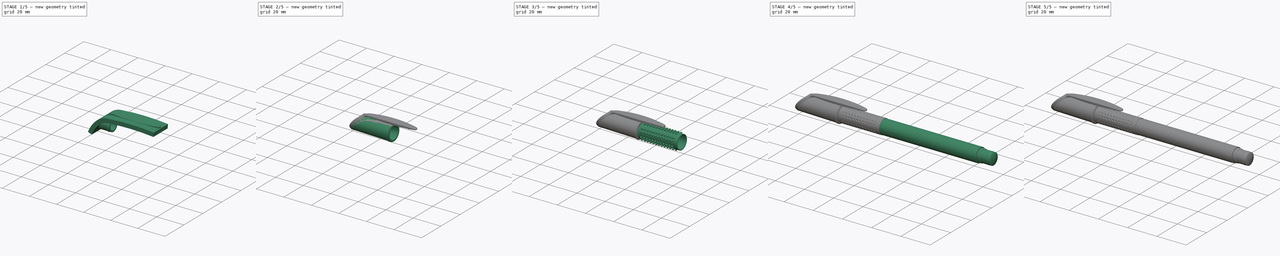
[diagram: build sequence overview — one tinted view per stage of 5, left to right]
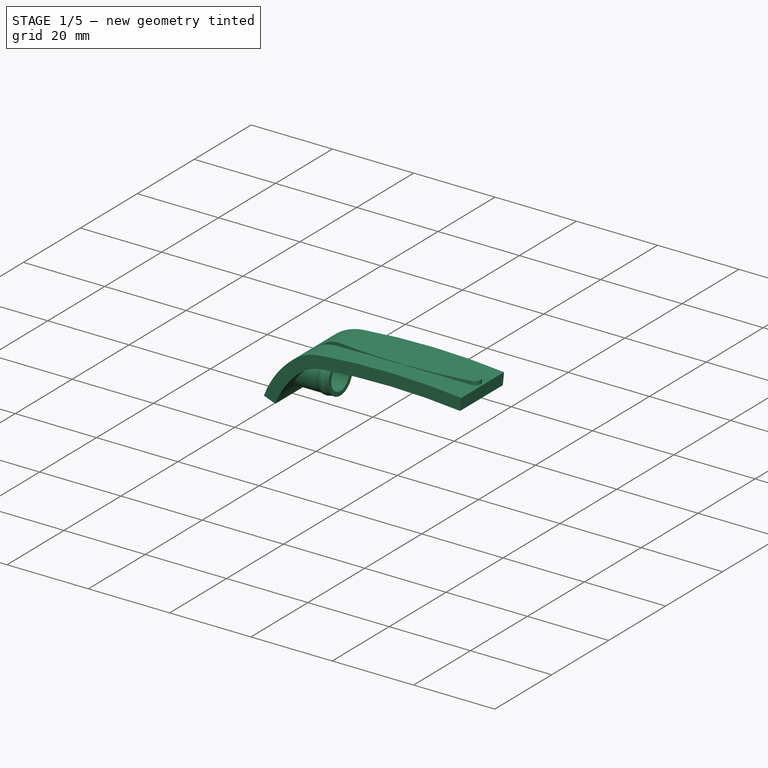
[diagram: stage 1 of 5 — iso view after this stage's code; geometry added in this stage tinted green]
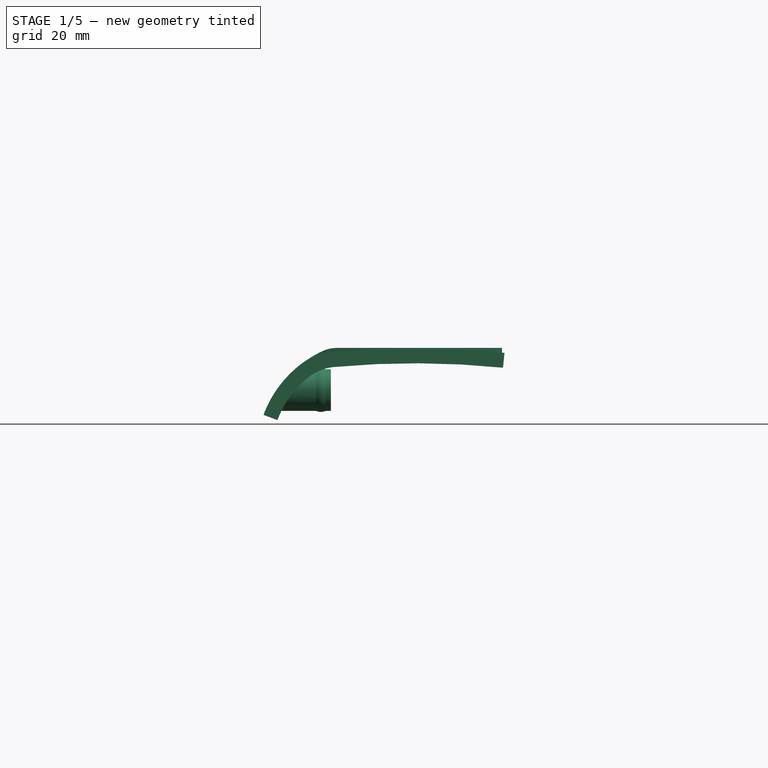
[diagram: stage 1 of 5 — front view after this stage's code; geometry added in this stage tinted green]
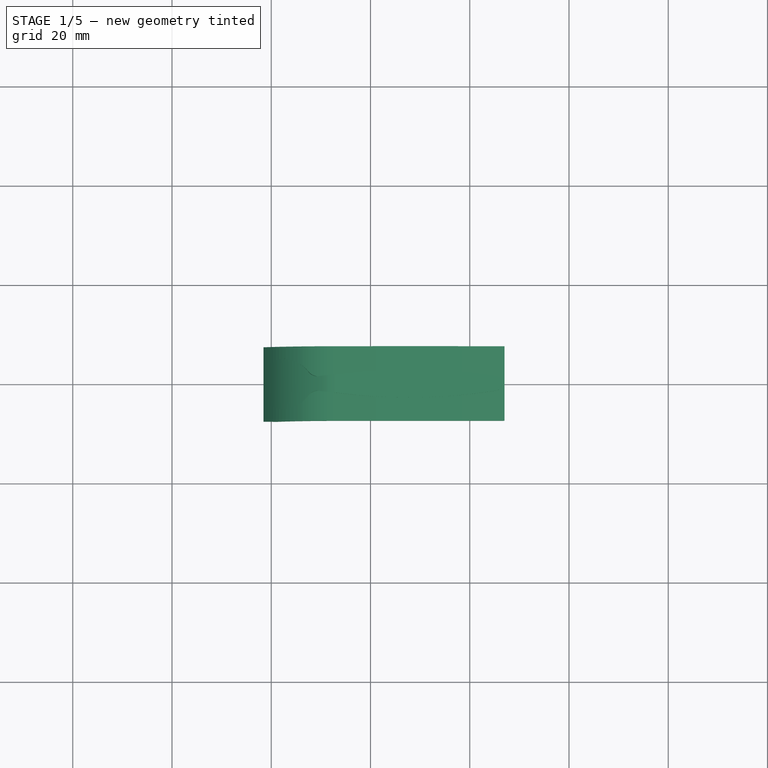
[diagram: stage 1 of 5 — top view after this stage's code; geometry added in this stage tinted green]
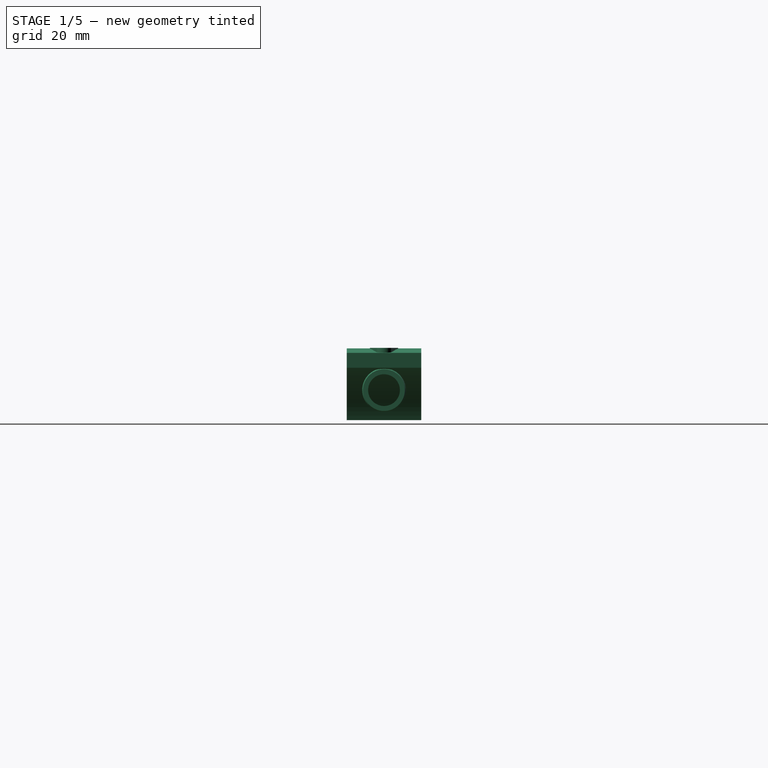
[diagram: stage 1 of 5 — right view after this stage's code; geometry added in this stage tinted green]
FCSTD DOCUMENT  (FreeCAD 0.19R)
Label: pen
License: All rights reserved
LicenseURL: http://en.wikipedia.org/wiki/All_rights_reserved
objects: Sketcher::SketchObject×18, PartDesign::Body×16, PartDesign::Revolution×8, PartDesign::Pad×6, Part::FeaturePython×3, App::DocumentObjectGroup×3, Part::Cut×3, Part::Sphere×2, Part::MultiFuse×2, Part::Fillet×2, Part::Sweep×2, Part::MultiCommon×2, Part::Offset×2
note: 80 computed .brp shape members not serialized (recipe doc carries the construction recipe); baked Part::Feature solids carry a one-line shape summary decoded from their .brp

FEATURE [PartDesign::Body] Body009  label="Body笔帽"
  Group = -> [Sketch009,Revolution006]
  Origin = -> Origin009
  Tip = -> Revolution006
FEATURE [Sketcher::SketchObject] Sketch010
  MapMode = 5
  Placement = pos=(0,0,0) rot=(1,0,0;1.5708rad)
  Support = -> [XZ_Plane010]
  sketch-geometry (4):
    g0: LineSegment StartX=-8.94427 StartY=6 StartZ=0 EndX=-28.9443 EndY=6 EndZ=0
    g1: LineSegment StartX=-28.9443 StartY=6 StartZ=0 EndX=-28.9443 EndY=-6 EndZ=0
    g2: LineSegment StartX=-28.9443 StartY=-6 StartZ=0 EndX=-19.799 EndY=-6 EndZ=0
    g3: ArcOfCircle CenterX=0 CenterY=-13 CenterZ=0 NormalX=0 NormalY=0 NormalZ=1 AngleXU=0 Radius=21 StartAngle=2.01077 EndAngle=2.80176
  constraints (12):
    c: Horizontal(g0)
    c: Coincident(g0,g1)
    c: Coincident(g1,g2)
    c: Horizontal(g2)
    c: Coincident(g3,g0)
    c: Coincident(g3,g2)
    c: DistanceX(g0,g0) = 20
    c: DistanceY(g1,g1) = 12
    c: DistanceY(g3,g-1) = 13
    c: Radius(g3) = 21
    c: Symmetric(g0,g1,g-1)
    c: PointOnObject(g3,g-2)
FEATURE [PartDesign::Pad] Pad003  label="Pad笔帽切"
  Length = 15
  Length2 = 100
  Midplane = true
  Placement = pos=(0,0,0) rot=(1,0,0;1.5708rad)
  Profile = -> Sketch010
  Refine = true
  Type = 0
FEATURE [Sketcher::SketchObject] Sketch011  label="Sketch笔帽夹内"
  MapMode = 5
  Placement = pos=(0,0,0) rot=(1,0,0;1.5708rad)
  Support = -> [XZ_Plane011]
  sketch-geometry (8):
    g0: LineSegment StartX=-20 StartY=4.2 StartZ=0 EndX=-11.0995 EndY=4.2 EndZ=0
    g1: LineSegment StartX=-8 StartY=4.2 StartZ=0 EndX=-8 EndY=3.2 EndZ=0
    g2: LineSegment StartX=-8 StartY=3.2 StartZ=0 EndX=-20 EndY=3.2 EndZ=0
    g3: LineSegment StartX=-20 StartY=3.2 StartZ=0 EndX=-20 EndY=4.2 EndZ=0
    g4: LineSegment StartX=-8.9005 StartY=4.2 StartZ=0 EndX=-8 EndY=4.2 EndZ=0
    g5: ArcOfCircle CenterX=-10 CenterY=2.40875 CenterZ=0 NormalX=0 NormalY=0 NormalZ=1 AngleXU=0 Radius=2 StartAngle=1.19555 EndAngle=1.94604
    g6: ArcOfCircle CenterX=-11.0995 CenterY=5.2 CenterZ=0 NormalX=0 NormalY=0 NormalZ=1 AngleXU=0 Radius=1 StartAngle=4.71239 EndAngle=5.08763
    g7: ArcOfCircle CenterX=-8.9005 CenterY=5.2 CenterZ=0 NormalX=0 NormalY=0 NormalZ=1 AngleXU=0 Radius=1 StartAngle=4.33714 EndAngle=4.71239
  constraints (22):
    c: Coincident(g4,g1)
    c: Coincident(g1,g2)
    c: Coincident(g2,g3)
    c: Coincident(g3,g0)
    c: Horizontal(g0)
    c: Horizontal(g2)
    c: Vertical(g1)
    c: Vertical(g3)
    c: DistanceY(g1,g1) = 1
    c: DistanceY(g-1,g4) = 4.2
    c: DistanceX(g0,g4) = 12
    c: DistanceX(g4,g-1) = 8
    c: Tangent(g0,g4)
    c: Tangent(g0,g6) = -1.5708
    c: Tangent(g5,g6) = 1.5708
    c: Tangent(g5,g7) = 1.5708
    c: Tangent(g4,g7) = -1.5708
    c: Radius(g5) = 2
    c: Angle(g5) = 0.750492
    c: Radius(g7) = 1
    c: Equal(g6,g7)
    c: DistanceX(g2,g5) = 10
FEATURE [PartDesign::Revolution] Revolution007  label="Revolution笔帽夹内"
  Angle = 360
  Axis = (1,0,0)
  Base = (0,0,0)
  Placement = pos=(0,0,0) rot=(1,0,0;1.5708rad)
  Profile = -> Sketch011
  ReferenceAxis = -> Sketch011 [H_Axis]
  Refine = true
FEATURE [PartDesign::Body] Body012  label="Body笔帽夹突"
  Group = -> [Sketch012,Pad004]
  Origin = -> Origin012
  Tip = -> Pad004
FEATURE [Sketcher::SketchObject] Sketch013  label="Sketch笔帽夹section_xz_path"
  MapMode = 5
  Placement = pos=(0,0,0) rot=(1,0,0;1.5708rad)
  Support = -> [XZ_Plane013]
  sketch-geometry (3):
    g0: ArcOfCircle CenterX=0 CenterY=-13 CenterZ=0 NormalX=0 NormalY=0 NormalZ=1 AngleXU=0 Radius=21 StartAngle=2.00727 EndAngle=2.79266
    g1: ArcOfCircle CenterX=-6.76387 CenterY=1.5 CenterZ=0 NormalX=0 NormalY=0 NormalZ=1 AngleXU=0 Radius=5 StartAngle=1.5708 EndAngle=2.00727
    g2: LineSegment StartX=-6.76387 StartY=6.5 StartZ=0 EndX=30 EndY=6.5 EndZ=0
  constraints (10):
    c: Horizontal(g2)
    c: Tangent(g1,g2) = 1.5708
    c: Tangent(g0,g1) = -1.5708
    c: Radius(g1) = 5
    c: Radius(g0) = 21
    c: Angle(g0) = 0.785398
    c: DistanceX(g-1,g2) = 30
    c: DistanceY(g-1,g2) = 6.5
    c: DistanceY(g0,g-1) = 13
    c: PointOnObject(g0,g-2)
FEATURE [Sketcher::SketchObject] Sketch014  label="Sketch笔帽夹section_xy"
  AttachmentOffset = pos=(0,0,-6) rot=(0,0,1;0rad)
  MapMode = 5
  Placement = pos=(0,0,-6) rot=(0,0,1;0rad)
  Support = -> [XY_Plane014]
  sketch-geometry (10):
    g0: ArcOfCircle CenterX=-12.5 CenterY=0 CenterZ=0 NormalX=0 NormalY=0 NormalZ=1 AngleXU=0 Radius=7 StartAngle=2.5141 EndAngle=3.76908
    g1: ArcOfCircle CenterX=-16.2237 CenterY=2.70073 CenterZ=0 NormalX=0 NormalY=0 NormalZ=1 AngleXU=0 Radius=2.4 StartAngle=1.4669 EndAngle=2.5141
    g2: ArcOfCircle CenterX=-16.6282 CenterY=-1.17824 CenterZ=0 NormalX=0 NormalY=0 NormalZ=1 AngleXU=0 Radius=6.3 StartAngle=0.594239 EndAngle=1.4669
    g3: ArcOfCircle CenterX=-9.751 CenterY=3.46875 CenterZ=0 NormalX=0 NormalY=0 NormalZ=1 AngleXU=0 Radius=2 StartAngle=3.73583 EndAngle=4.8703
    g4: ArcOfCircle CenterX=-16.2237 CenterY=-2.70073 CenterZ=0 NormalX=0 NormalY=0 NormalZ=1 AngleXU=0 Radius=2.4 StartAngle=3.76908 EndAngle=4.81628
    g5: ArcOfCircle CenterX=-16.6282 CenterY=1.17824 CenterZ=0 NormalX=0 NormalY=0 NormalZ=1 AngleXU=0 Radius=6.3 StartAngle=4.81628 EndAngle=5.68895
    g6: ArcOfCircle CenterX=-9.751 CenterY=-3.46875 CenterZ=0 NormalX=0 NormalY=0 NormalZ=1 AngleXU=0 Radius=2 StartAngle=1.41289 EndAngle=2.54735
    g7: ArcOfCircle CenterX=7.86116 CenterY=-107.138 CenterZ=0 NormalX=0 NormalY=0 NormalZ=1 AngleXU=0 Radius=110 StartAngle=1.41217 EndAngle=1.7287
    g8: ArcOfCircle CenterX=7.86116 CenterY=107.138 CenterZ=0 NormalX=0 NormalY=0 NormalZ=1 AngleXU=0 Radius=110 StartAngle=4.55448 EndAngle=4.87101
    g9: ArcOfCircle CenterX=25 CenterY=0 CenterZ=0 NormalX=0 NormalY=0 NormalZ=1 AngleXU=0 Radius=1.5 StartAngle=4.87101 EndAngle=7.69536
  constraints (30):
    c: Tangent(g1,g0) = -1.5708
    c: Tangent(g2,g1) = -1.5708
    c: Tangent(g4,g0) = -1.5708
    c: Tangent(g5,g4) = -1.5708
    c: Tangent(g2,g3) = 1.5708
    c: Tangent(g5,g6) = 1.5708
    c: Tangent(g3,g7) = 1.5708
    c: Tangent(g6,g8) = 1.5708
    c: Tangent(g7,g9) = -1.5708
    c: Tangent(g8,g9) = -1.5708
    c: Radius(g9) = 1.5
    c: Radius(g7) = 110
    c: DistanceX(g-1,g9) = 25
    c: Radius(g0) = 7
    c: PointOnObject(g0,g-1)
    c: Radius(g1) = 2.4
    c: Radius(g2) = 6.3
    c: Radius(g3) = 2
    c: Angle(g1) = 1.0472
    c: Angle(g2) = 0.872665
    c: Angle(g3) = 1.13446
    c: Angle(g4) = 1.0472
    c: Angle(g5) = 0.872665
    c: Angle(g6) = 1.13446
    c: DistanceX(g0,g-1) = 12.5
    c: Equal(g1,g4)
    c: Equal(g2,g5)
    c: Equal(g3,g6)
    c: Equal(g7,g8)
    c: PointOnObject(g9,g-1)
FEATURE [PartDesign::Pad] Pad006  label="Pad笔帽夹section_xy"
  Length = 20
  Length2 = 100
  Profile = -> Sketch014
  Refine = true
  Type = 0
FEATURE [PartDesign::Body] Body014  label="Body笔帽夹section_xy"
  Group = -> [Sketch014,Pad006]
  Origin = -> Origin014
  Tip = -> Pad006
FEATURE [Sketcher::SketchObject] Sketch015  label="Sketch笔帽夹section_xz_outline"
  AttachmentOffset = pos=(0,0,30) rot=(0,0,1;0rad)
  MapMode = 5
  Placement = pos=(30,-6.7e-15,6.7e-15) rot=(0.57735,0.57735,0.57735;2.0944rad)
  Support = -> [YZ_Plane013]
  sketch-geometry (1):
    g0: LineSegment StartX=-7.5 StartY=6.5 StartZ=0 EndX=7.5 EndY=6.5 EndZ=0
  constraints (3):
    c: Symmetric(g0,g0,g-2)
    c: DistanceX(g0,g0) = 15
    c: DistanceY(g-1,g0) = 6.5
FEATURE [PartDesign::Body] Body013  label="Body笔帽夹section_xz"
  Group = -> [Sketch013,Sketch015]
  Origin = -> Origin013
FEATURE [Part::Sweep] Sweep  label="Sweep_Part_笔帽夹section_xz"
  Frenet = false
  Sections = -> [Sketch015]
  Solid = false
  Spine = -> Sketch013 [Edge1,Edge2,Edge3]
  Transition = 1
FEATURE [Part::MultiCommon] Common  label="Common笔帽夹section0"
  Refine = true
  Shapes = -> [Pad006,Sweep]
FEATURE [Part::Offset] Offset  label="Offset笔帽夹section0"
  Fill = true
  Intersection = false
  Join = 0
  Mode = 0
  SelfIntersection = false
  Source = -> Common
  Value = 2
FEATURE [Sketcher::SketchObject] Sketch016  label="Sketch笔帽夹section_xz1_path"
  MapMode = 5
  Placement = pos=(0,0,0) rot=(1,0,0;1.5708rad)
  Support = -> [XZ_Plane015]
  sketch-geometry (3):
    g0: ArcOfCircle CenterX=0 CenterY=-13 CenterZ=0 NormalX=0 NormalY=0 NormalZ=1 AngleXU=0 Radius=23 StartAngle=2.26274 EndAngle=2.78634
    g1: ArcOfCircle CenterX=-6.38037 CenterY=-5.29994 CenterZ=0 NormalX=0 NormalY=0 NormalZ=1 AngleXU=0 Radius=13 StartAngle=1.66279 EndAngle=2.26274
    g2: ArcOfCircle CenterX=8.96085 CenterY=-171.594 CenterZ=0 NormalX=0 NormalY=0 NormalZ=1 AngleXU=0 Radius=180 StartAngle=1.47041 EndAngle=1.66279
  constraints (11):
    c: Tangent(g0,g1) = -1.5708
    c: Tangent(g1,g2) = -1.5708
    c: Radius(g0) = 23
    c: PointOnObject(g0,g-2)
    c: Radius(g1) = 13
    c: Radius(g2) = 180
    c: DistanceX(g-1,g2) = 27
    c: Angle(g0) = 0.523599
    c: DistanceY(g0,g-1) = 5
    c: DistanceY(g-1,g2) = 7.5
    c: DistanceY(g0,g-1) = 13
FEATURE [Sketcher::SketchObject] Sketch017  label="Sketch笔帽夹section_xz1_outline"
  AttachmentOffset = pos=(0,0,27) rot=(0,0,1;0rad)
  MapMode = 5
  Placement = pos=(27,-6e-15,6e-15) rot=(0.57735,0.57735,0.57735;2.0944rad)
  Support = -> [YZ_Plane015]
  sketch-geometry (1):
    g0: LineSegment StartX=-7.5 StartY=7.5 StartZ=0 EndX=7.5 EndY=7.5 EndZ=0
  constraints (3):
    c: Symmetric(g0,g0,g-2)
    c: DistanceX(g0,g0) = 15
    c: DistanceY(g-1,g0) = 7.5
FEATURE [PartDesign::Body] Body015  label="Body笔帽夹section_xz1"
  Group = -> [Sketch016,Sketch017]
  Origin = -> Origin015
FEATURE [Part::Sweep] Sweep001  label="Sweep_Part_笔帽夹section_xz1"
  Frenet = false
  Sections = -> [Sketch017]
  Solid = false
  Spine = -> Sketch016 [Edge1,Edge2,Edge3]
  Transition = 1
FEATURE [Part::Offset] Offset001  label="Offset笔帽夹section_xz1"
  Fill = true
  Intersection = false
  Join = 0
  Mode = 0
  SelfIntersection = false
  Source = -> Sweep001
  Value = -3
FEATURE [Part::Cut] Cut002  label="Cut笔帽夹内"
  Base = -> Revolution007
  Refine = true
  Tool = -> Pad003
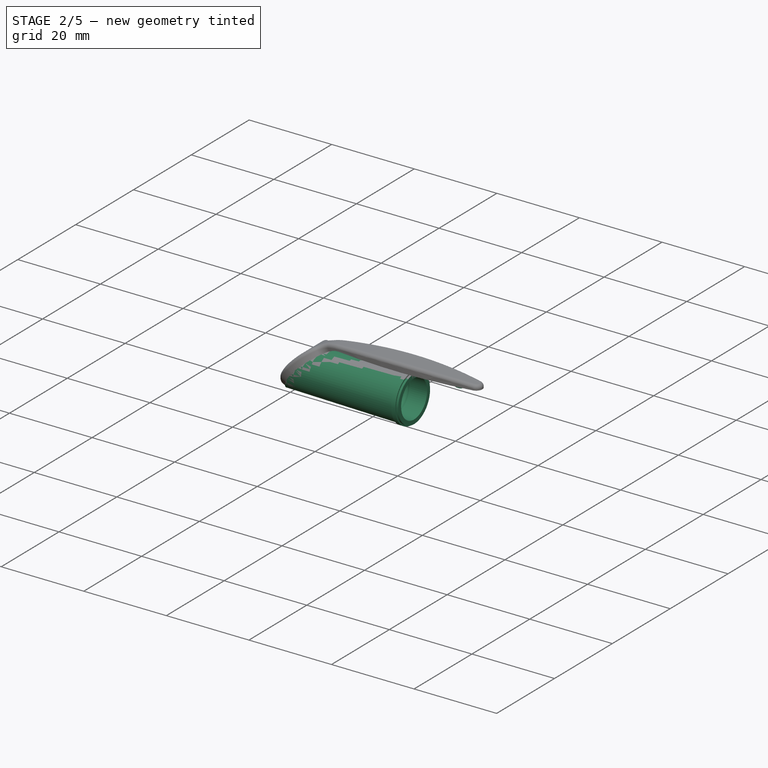
[diagram: stage 2 of 5 — iso view after this stage's code; geometry added in this stage tinted green]
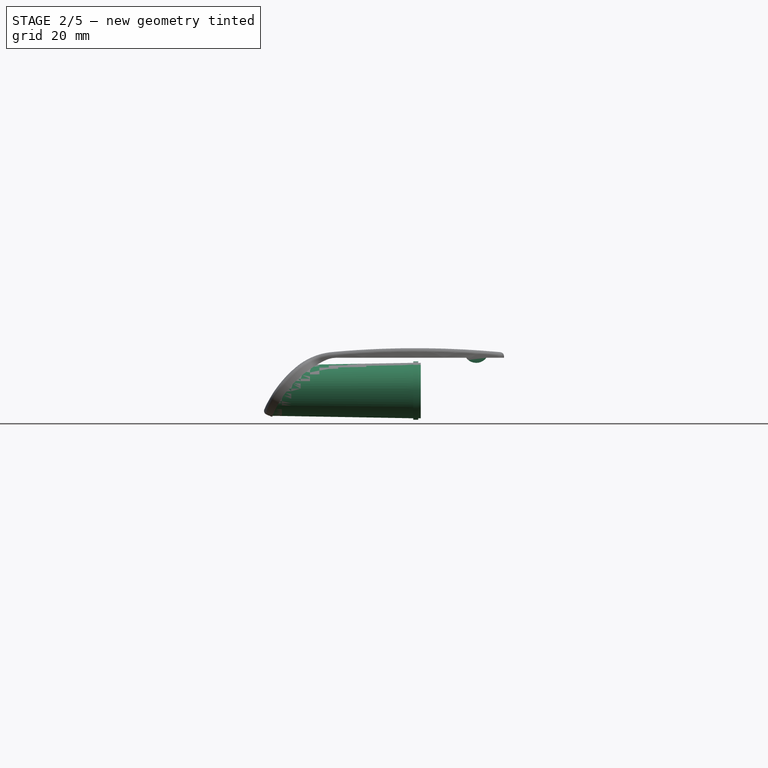
[diagram: stage 2 of 5 — front view after this stage's code; geometry added in this stage tinted green]
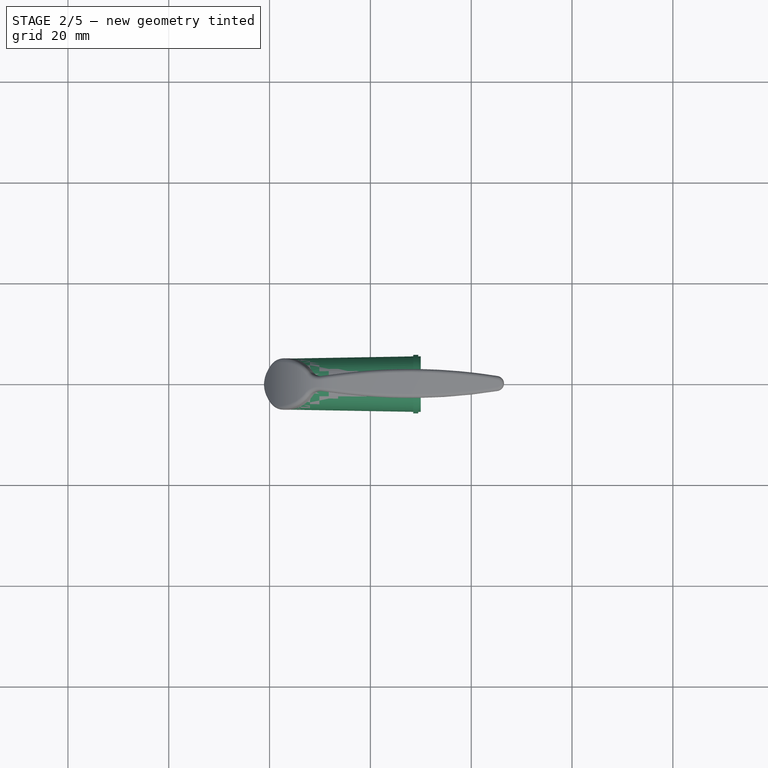
[diagram: stage 2 of 5 — top view after this stage's code; geometry added in this stage tinted green]
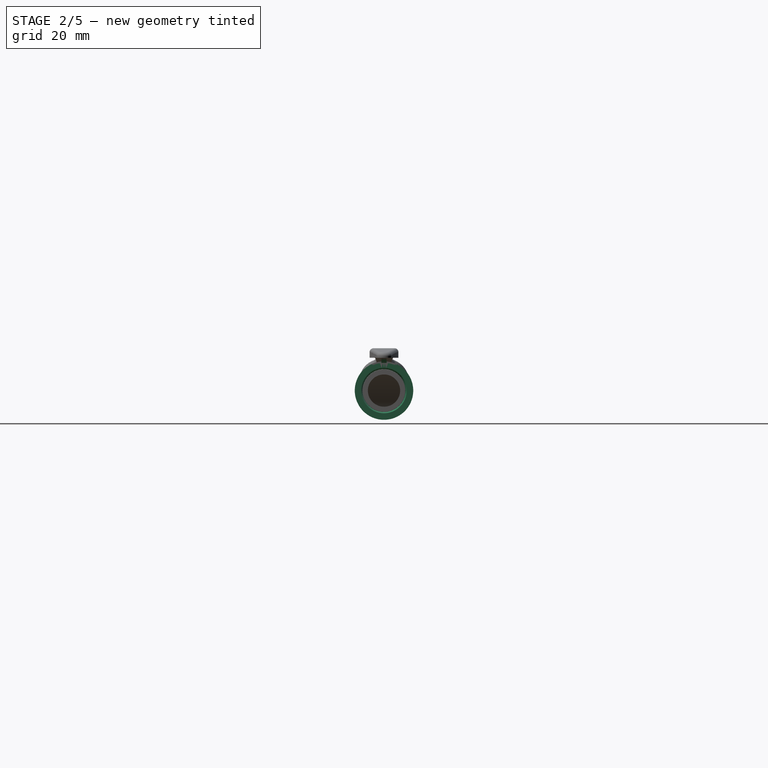
[diagram: stage 2 of 5 — right view after this stage's code; geometry added in this stage tinted green]
FEATURE [App::DocumentObjectGroup] Group001  label="Group笔管"
  Group = -> [Body005,Body006,Body007,Cut]
FEATURE [Sketcher::SketchObject] Sketch009
  MapMode = 5
  Placement = pos=(0,0,0) rot=(1,0,0;1.5708rad)
  Support = -> [XZ_Plane009]
  sketch-geometry (17):
    g0: LineSegment StartX=10 StartY=5.5 StartZ=0 EndX=10 EndY=4.5 EndZ=0
    g1: LineSegment StartX=10 StartY=4.5 StartZ=0 EndX=5.79708 EndY=4.42664 EndZ=0
    g2: LineSegment StartX=-5 StartY=4.23817 StartZ=0 EndX=-8.97394 EndY=4.23817 EndZ=0
    g3: LineSegment StartX=-20 StartY=4.23817 StartZ=0 EndX=-20 EndY=5.00253 EndZ=0
    g4: LineSegment StartX=-20 StartY=5.00253 StartZ=0 EndX=8.5 EndY=5.5 EndZ=0
    g5: LineSegment StartX=8.5 StartY=5.5 StartZ=0 EndX=8.5 EndY=5.8 EndZ=0
    g6: LineSegment StartX=8.5 StartY=5.8 StartZ=0 EndX=9.5 EndY=5.8 EndZ=0
    g7: LineSegment StartX=9.5 StartY=5.8 StartZ=0 EndX=9.5 EndY=5.5 EndZ=0
    g8: LineSegment StartX=9.5 StartY=5.5 StartZ=0 EndX=10 EndY=5.5 EndZ=0
    g9: LineSegment StartX=4.77117 StartY=4.40873 StartZ=0 EndX=-5 EndY=4.23817 EndZ=0
    g10: ArcOfCircle CenterX=5.3 CenterY=3.50828 CenterZ=0 NormalX=0 NormalY=0 NormalZ=1 AngleXU=0 Radius=1 StartAngle=1.23918 EndAngle=1.93732
    g11: ArcOfCircle CenterX=4.76245 CenterY=4.90865 CenterZ=0 NormalX=0 NormalY=0 NormalZ=1 AngleXU=0 Radius=0.5 StartAngle=4.72984 EndAngle=5.07891
    g12: ArcOfCircle CenterX=5.78835 CenterY=4.92656 CenterZ=0 NormalX=0 NormalY=0 NormalZ=1 AngleXU=0 Radius=0.5 StartAngle=4.38078 EndAngle=4.72984
    g13: LineSegment StartX=-11.0261 StartY=4.23817 StartZ=0 EndX=-20 EndY=4.23817 EndZ=0
    g14: ArcOfCircle CenterX=-10 CenterY=2.4191 CenterZ=0 NormalX=0 NormalY=0 NormalZ=1 AngleXU=0 Radius=2 StartAngle=1.22173 EndAngle=1.91986
    g15: ArcOfCircle CenterX=-11.0261 CenterY=5.23817 CenterZ=0 NormalX=0 NormalY=0 NormalZ=1 AngleXU=0 Radius=1 StartAngle=4.71239 EndAngle=5.06145
    g16: ArcOfCircle CenterX=-8.97394 CenterY=5.23817 CenterZ=0 NormalX=0 NormalY=0 NormalZ=1 AngleXU=0 Radius=1 StartAngle=4.36332 EndAngle=4.71239
  constraints (47):
    c: Vertical(g0)
    c: Coincident(g0,g1)
    c: Coincident(g9,g2)
    c: Horizontal(g2)
    c: Coincident(g13,g3)
    c: Coincident(g3,g4)
    c: Coincident(g4,g5)
    c: Vertical(g5)
    c: Coincident(g5,g6)
    c: Horizontal(g6)
    c: Coincident(g6,g7)
    c: Vertical(g7)
    c: Coincident(g7,g8)
    c: Coincident(g8,g0)
    c: Horizontal(g8)
    c: Angle(g5,g4) = 1.58825
    c: Parallel(g1,g4)
    c: DistanceY(g0,g0) = 1
    c: DistanceX(g8,g8) = 0.5
    c: DistanceX(g-1,g0) = 10
    c: DistanceX(g6,g6) = 1
    c: Equal(g5,g7)
    c: DistanceY(g5,g5) = 0.3
    c: DistanceX(g13,g2) = 15
    c: DistanceX(g13,g0) = 30
    c: Vertical(g3)
    c: DistanceY(g-1,g0) = 4.5
    c: Tangent(g1,g9)
    c: Tangent(g9,g11) = 1.5708
    c: Tangent(g10,g11) = 1.5708
    c: Tangent(g10,g12) = 1.5708
    c: Tangent(g1,g12) = 1.5708
    c: Radius(g10) = 1
    c: Radius(g12) = 0.5
    c: Equal(g11,g12)
    c: DistanceX(g10,g0) = 4.7
    c: Angle(g12) = 0.349066
    c: Tangent(g2,g13)
    c: Tangent(g13,g15) = 1.5708
    c: Tangent(g14,g15) = 1.5708
    c: Tangent(g14,g16) = 1.5708
    c: Tangent(g2,g16) = 1.5708
    c: Radius(g14) = 2
    c: Radius(g16) = 1
    c: Angle(g16) = 0.349066
    c: Equal(g15,g16)
    c: DistanceX(g3,g14) = 10
FEATURE [PartDesign::Revolution] Revolution006  label="Revolution笔帽"
  Angle = 360
  Axis = (1,0,0)
  Base = (0,0,0)
  Placement = pos=(0,0,0) rot=(1,0,0;1.5708rad)
  Profile = -> Sketch009
  ReferenceAxis = -> Sketch009 [H_Axis]
  Refine = true
FEATURE [PartDesign::Body] Body010  label="Body笔帽切"
  Group = -> [Sketch010,Pad003]
  Origin = -> Origin010
  Tip = -> Pad003
FEATURE [Part::Cut] Cut001  label="Cut笔帽"
  Base = -> Revolution006
  Refine = true
  Tool = -> Pad003
FEATURE [PartDesign::Body] Body011  label="Body笔帽夹内"
  Group = -> [Sketch011,Revolution007]
  Origin = -> Origin011
  Tip = -> Revolution007
FEATURE [Sketcher::SketchObject] Sketch012  label="Sketch笔帽夹突"
  MapMode = 5
  Placement = pos=(0,0,0) rot=(1,0,0;1.5708rad)
  Support = -> [XZ_Plane012]
  sketch-geometry (2):
    g0: LineSegment StartX=19 StartY=6.5 StartZ=0 EndX=23 EndY=6.5 EndZ=0
    g1: ArcOfCircle CenterX=21 CenterY=8 CenterZ=0 NormalX=0 NormalY=0 NormalZ=1 AngleXU=0 Radius=2.5 StartAngle=3.78509 EndAngle=5.63968
  constraints (7):
    c: Horizontal(g0)
    c: Coincident(g1,g0)
    c: Coincident(g1,g0)
    c: DistanceX(g-1,g0) = 23
    c: DistanceX(g0,g0) = 4
    c: DistanceY(g-1,g0) = 6.5
    c: Radius(g1) = 2.5
FEATURE [PartDesign::Pad] Pad004  label="Pad笔帽夹突"
  Length = 1
  Length2 = 100
  Midplane = true
  Placement = pos=(0,0,0) rot=(1,0,0;1.5708rad)
  Profile = -> Sketch012
  Refine = true
  Type = 0
FEATURE [Part::MultiCommon] Common001  label="Common笔帽夹section1"
  Refine = true
  Shapes = -> [Offset001,Offset]
FEATURE [Part::Fillet] Fillet001  label="Fillet笔帽夹section1"
  Base = -> Common001
  Edges = 19 edges r=0.8: [Edge2,Edge3,Edge4,Edge5,Edge6,Edge7,Edge8,Edge9,Edge10,Edge11,Edge13,Edge14,Edge15,Edge16,Edge33,Edge35,Edge36,Edge37,Edge38]
FEATURE [Part::MultiFuse] Fusion001  label="Fusion笔帽夹"
  Refine = true
  Shapes = -> [Cut002,Fillet001,Pad004]
FEATURE [App::DocumentObjectGroup] Group002  label="Group笔帽"
  Group = -> [Body009,Body010,Fillet,Body011,Body012,Body013,Body014,Body015,Fusion001]
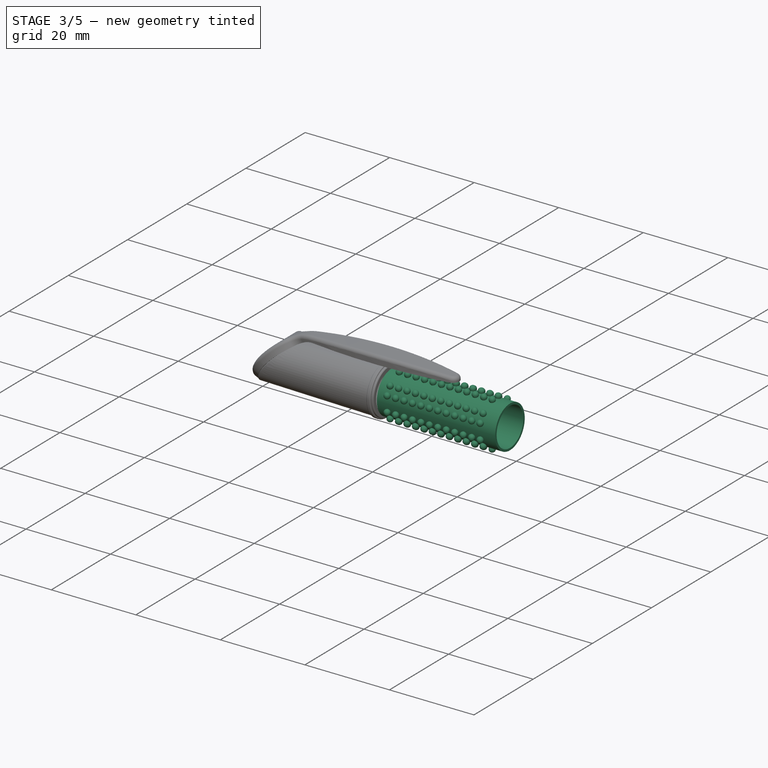
[diagram: stage 3 of 5 — iso view after this stage's code; geometry added in this stage tinted green]
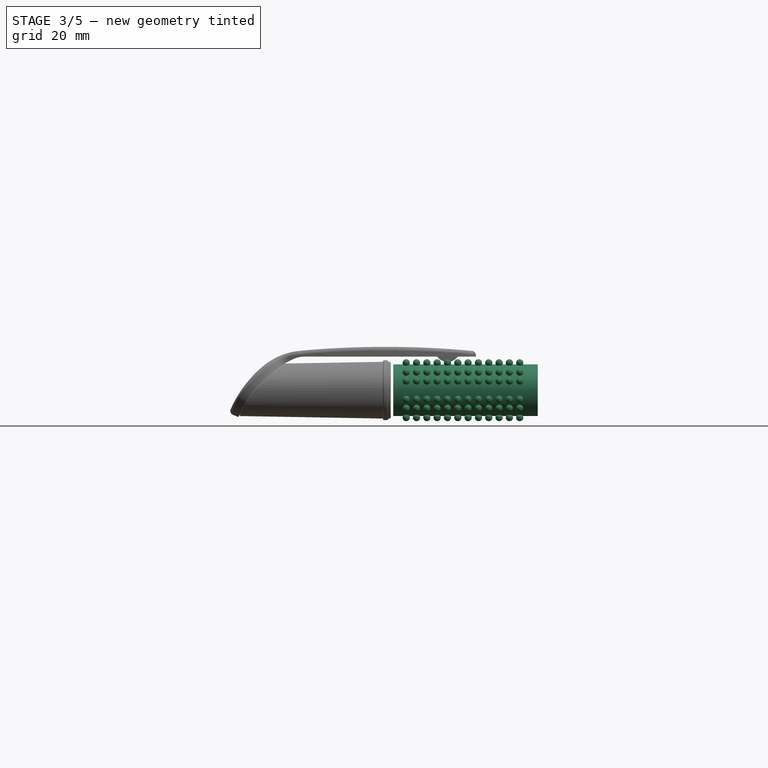
[diagram: stage 3 of 5 — front view after this stage's code; geometry added in this stage tinted green]
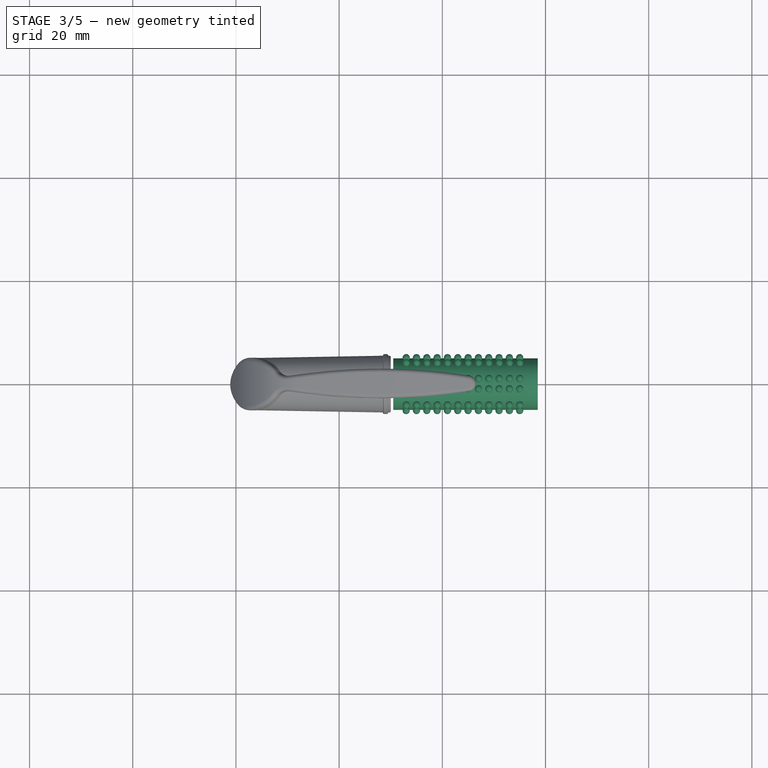
[diagram: stage 3 of 5 — top view after this stage's code; geometry added in this stage tinted green]
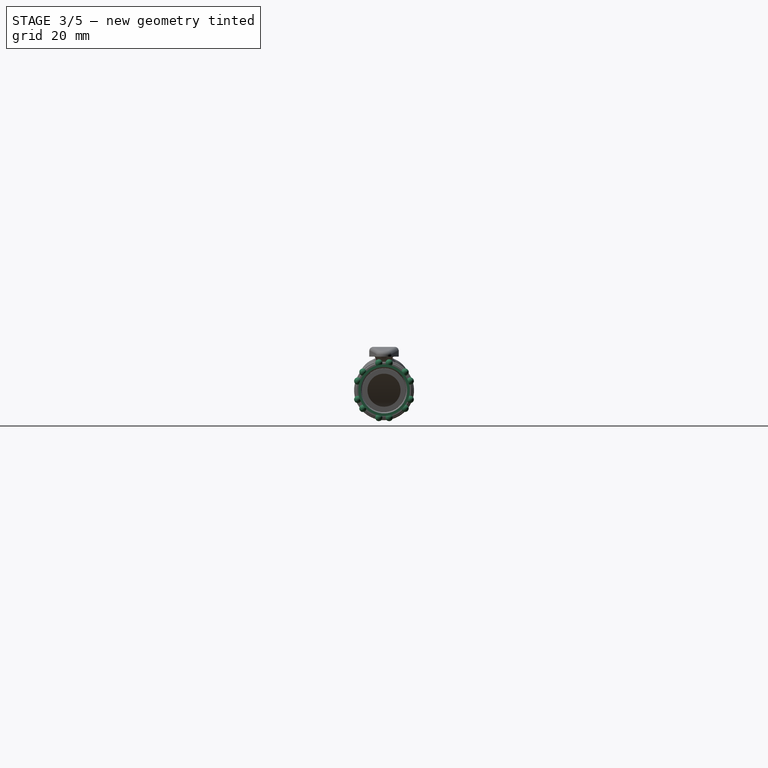
[diagram: stage 3 of 5 — right view after this stage's code; geometry added in this stage tinted green]
FEATURE [PartDesign::Body] Body007  label="Body笔管后盖"
  Group = -> [Sketch007,Revolution004]
  Origin = -> Origin007
  Tip = -> Revolution004
FEATURE [Sketcher::SketchObject] Sketch008
  MapMode = 5
  Placement = pos=(0,0,0) rot=(1,0,0;1.5708rad)
  Support = -> [XZ_Plane008]
  sketch-geometry (4):
    g0: LineSegment StartX=10.5 StartY=5 StartZ=0 EndX=38.5 EndY=5 EndZ=0
    g1: LineSegment StartX=38.5 StartY=5 StartZ=0 EndX=38.5 EndY=4.5 EndZ=0
    g2: LineSegment StartX=38.5 StartY=4.5 StartZ=0 EndX=10.5 EndY=4.5 EndZ=0
    g3: LineSegment StartX=10.5 StartY=4.5 StartZ=0 EndX=10.5 EndY=5 EndZ=0
  constraints (12):
    c: Coincident(g0,g1)
    c: Coincident(g1,g2)
    c: Coincident(g2,g3)
    c: Coincident(g3,g0)
    c: Horizontal(g0)
    c: Horizontal(g2)
    c: Vertical(g1)
    c: Vertical(g3)
    c: DistanceX(g0,g0) = 28
    c: DistanceY(g3,g3) = 0.5
    c: DistanceY(g-1,g2) = 4.5
    c: DistanceX(g-1,g2) = 10.5
FEATURE [PartDesign::Revolution] Revolution005  label="Revolution笔管套(光滑)"
  Angle = 360
  Axis = (1,0,0)
  Base = (0,0,0)
  Placement = pos=(0,0,0) rot=(1,0,0;1.5708rad)
  Profile = -> Sketch008
  ReferenceAxis = -> Sketch008 [H_Axis]
  Refine = true
FEATURE [PartDesign::Body] Body008  label="Body笔管套(光滑)"
  Group = -> [Sketch008,Revolution005]
  Origin = -> Origin008
  Tip = -> Revolution005
FEATURE [Part::Sphere] Sphere001  label="Sphere"
  Angle1 = -90
  Angle2 = 90
  Angle3 = 360
  AttacherType = Attacher::AttachEngine3D
  Placement = pos=(13,1,5.3) rot=(0,0,1;0rad)
  Radius = 0.7
FEATURE [Part::FeaturePython] Array001  label="Array圆球序列(两排)"  # Draft array (typed FeaturePython)
  Angle = 360
  ArrayType = 0
  Axis = (0,0,1)
  Base = -> Sphere001
  Center = (0,0,0)
  Fuse = false
  IntervalAxis = (0,0,0)
  IntervalX = (2,0,0)
  IntervalY = (0,-2,0)
  IntervalZ = (0,0,1)
  NumberPolar = 1
  NumberX = 12
  NumberY = 2
  NumberZ = 1
FEATURE [Part::FeaturePython] Array002  label="Array圆球序列(旋转)"  # Draft array (typed FeaturePython)
  Angle = 360
  ArrayType = 1
  Axis = (1,0,0)
  Base = -> Array001
  Center = (0,0,0)
  Fuse = false
  IntervalAxis = (0,0,0)
  IntervalX = (1,0,0)
  IntervalY = (0,1,0)
  IntervalZ = (0,0,1)
  NumberPolar = 6
  NumberX = 2
  NumberY = 2
  NumberZ = 1
FEATURE [Part::Fillet] Fillet  label="Fillet笔帽"
  Base = -> Cut001
  Edges = 5 edges r=0.25: [Edge2,Edge4,Edge11,Edge14,Edge21]
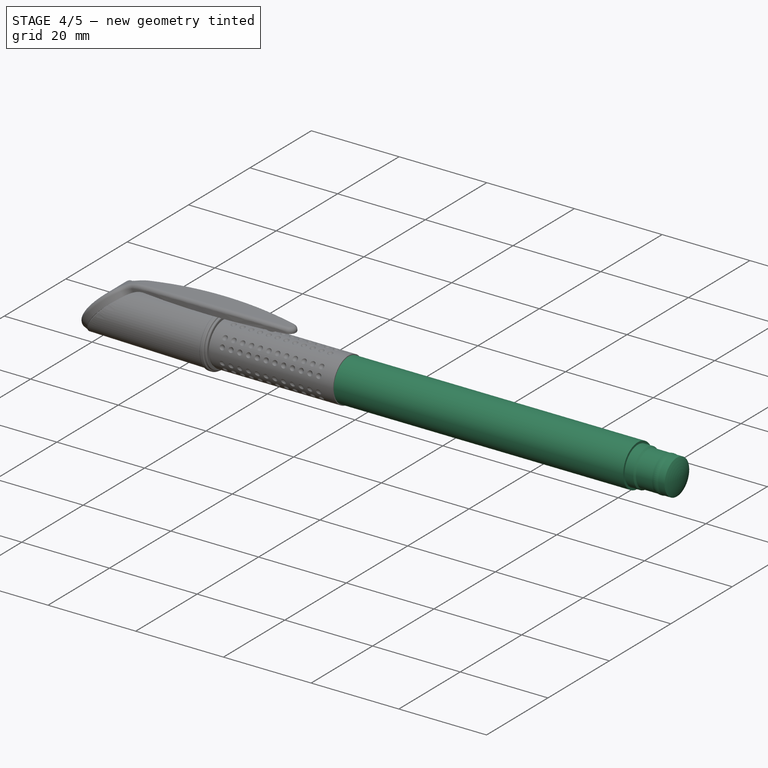
[diagram: stage 4 of 5 — iso view after this stage's code; geometry added in this stage tinted green]
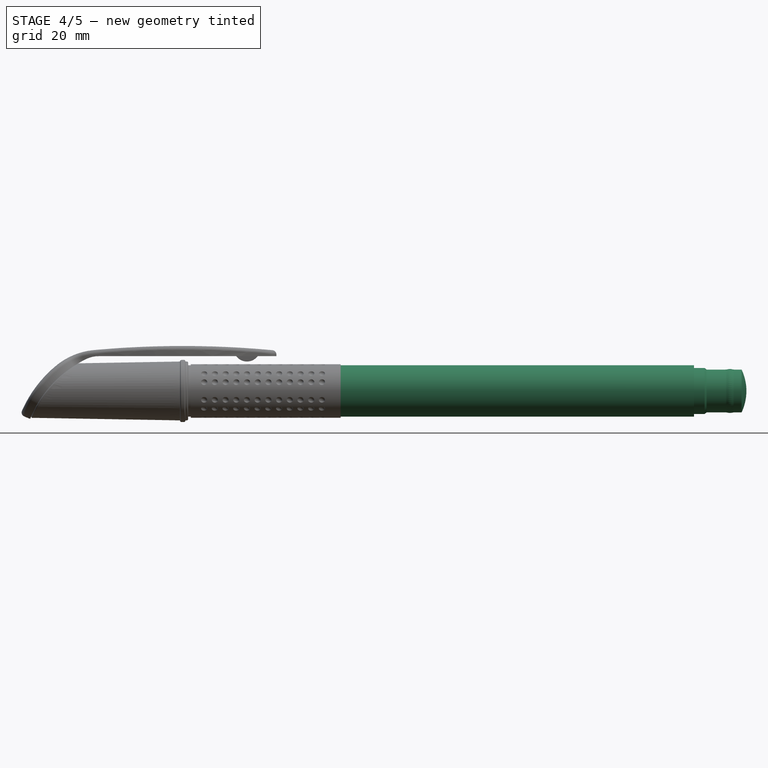
[diagram: stage 4 of 5 — front view after this stage's code; geometry added in this stage tinted green]
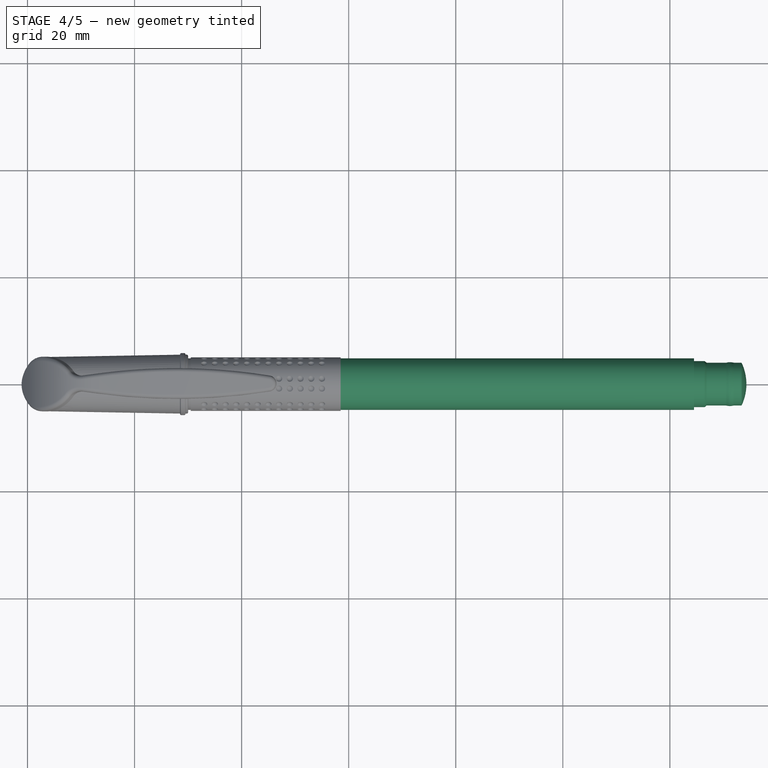
[diagram: stage 4 of 5 — top view after this stage's code; geometry added in this stage tinted green]
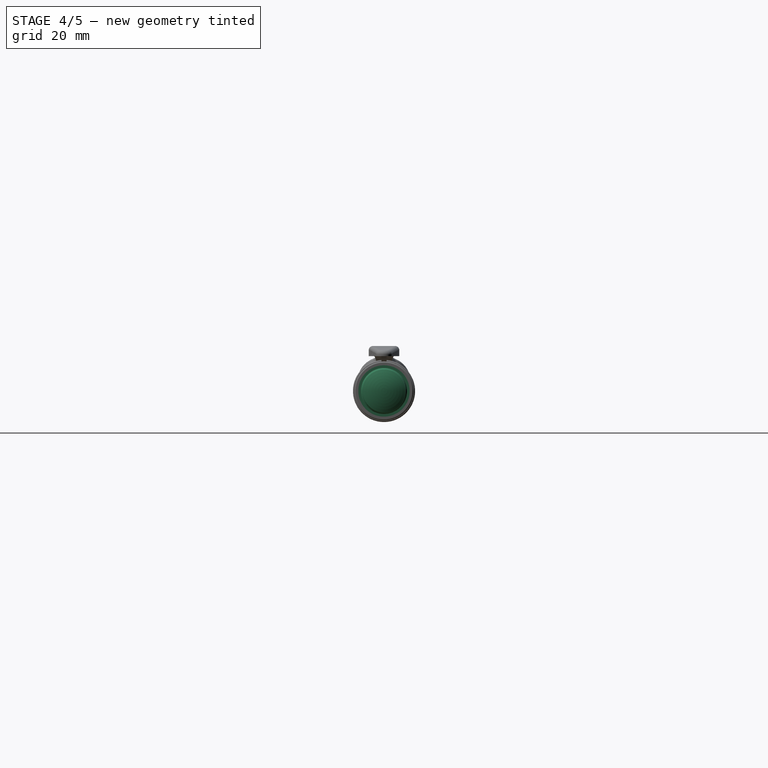
[diagram: stage 4 of 5 — right view after this stage's code; geometry added in this stage tinted green]
FEATURE [PartDesign::Body] Body002  label="Body连接套(笔芯-笔尖)"
  Group = -> [Sketch002,Revolution001]
  Origin = -> Origin002
  Tip = -> Revolution001
FEATURE [Sketcher::SketchObject] Sketch003  label="Sketch003加强筋"
  MapMode = 5
  Placement = pos=(0,0,0) rot=(1,0,0;1.5708rad)
  Support = -> [XZ_Plane003]
  sketch-geometry (3):
    g0: LineSegment StartX=-0.5 StartY=2.35 StartZ=0 EndX=-0.5 EndY=1.15 EndZ=0
    g1: LineSegment StartX=-0.5 StartY=1.15 StartZ=0 EndX=-6.5 EndY=1.15 EndZ=0
    g2: ArcOfCircle CenterX=-7.37616 CenterY=21.1308 CenterZ=0 NormalX=0 NormalY=0 NormalZ=1 AngleXU=0 Radius=20 StartAngle=4.75621 EndAngle=5.06336
  constraints (10):
    c: Vertical(g0)
    c: Coincident(g0,g1)
    c: Horizontal(g1)
    c: DistanceX(g0,g-1) = 0.5
    c: DistanceY(g0,g0) = 1.2
    c: DistanceY(g-1,g0) = 1.15
    c: DistanceX(g1,g1) = 6
    c: Coincident(g2,g0)
    c: Coincident(g2,g1)
    c: Radius(g2) = 20
FEATURE [PartDesign::Pad] Pad001  label="Pad加强筋"
  Length = 0.3
  Length2 = 100
  Midplane = true
  Placement = pos=(0,0,0) rot=(1,0,0;1.5708rad)
  Profile = -> Sketch003
  Refine = true
  Type = 0
FEATURE [Sketcher::SketchObject] Sketch004
  MapMode = 5
  Placement = pos=(0,0,0) rot=(0.57735,0.57735,0.57735;2.0944rad)
  Support = -> [YZ_Plane004]
  sketch-geometry (1):
    g0: Circle CenterX=0 CenterY=0 CenterZ=0 NormalX=0 NormalY=0 NormalZ=1 AngleXU=0 Radius=1.39
  constraints (2):
    c: Coincident(g0,g-1)
    c: Radius(g0) = 1.39
FEATURE [PartDesign::Pad] Pad002  label="Pad002油墨"
  Length = 90
  Length2 = 100
  Placement = pos=(0,0,0) rot=(0.57735,0.57735,0.57735;2.0944rad)
  Profile = -> Sketch004
  Refine = true
  Type = 0
FEATURE [PartDesign::Body] Body004  label="Body004油墨"
  Group = -> [Sketch004,Pad002]
  Origin = -> Origin004
  Tip = -> Pad002
FEATURE [App::DocumentObjectGroup] Group  label="Group笔芯"
  Group = -> [Sphere,Body,Body001,Body002,Body003,Fusion,Body004]
FEATURE [Sketcher::SketchObject] Sketch005
  MapMode = 5
  Placement = pos=(0,0,0) rot=(1,0,0;1.5708rad)
  Support = -> [XZ_Plane005]
  sketch-geometry (26):
    g0: LineSegment StartX=5 StartY=2.36 StartZ=0 EndX=0 EndY=2.36 EndZ=0
    g1: LineSegment StartX=0 StartY=2.36 StartZ=0 EndX=0 EndY=3.5 EndZ=0
    g2: LineSegment StartX=0 StartY=3.5 StartZ=0 EndX=4 EndY=3.5 EndZ=0
    g3: LineSegment StartX=4 StartY=3.5 StartZ=0 EndX=4 EndY=4.3 EndZ=0
    g4: LineSegment StartX=4 StartY=4.3 StartZ=0 EndX=4.5 EndY=4.3 EndZ=0
    g5: LineSegment StartX=10 StartY=4.3 StartZ=0 EndX=10 EndY=4.8 EndZ=0
    g6: LineSegment StartX=10 StartY=4.8 StartZ=0 EndX=10.5 EndY=4.8 EndZ=0
    g7: LineSegment StartX=10.5 StartY=4.8 StartZ=0 EndX=10.5 EndY=4.3 EndZ=0
    g8: LineSegment StartX=10.5 StartY=4.3 StartZ=0 EndX=38.5 EndY=4.3 EndZ=0
    g9: LineSegment StartX=38.5 StartY=4.3 StartZ=0 EndX=38.5 EndY=4.8 EndZ=0
    g10: LineSegment StartX=38.5 StartY=4.8 StartZ=0 EndX=104.5 EndY=4.8 EndZ=0
    g11: LineSegment StartX=104.5 StartY=4.8 StartZ=0 EndX=104.5 EndY=4.3 EndZ=0
    g12: LineSegment StartX=104.5 StartY=4.3 StartZ=0 EndX=106.5 EndY=4.3 EndZ=0
    g13: LineSegment StartX=106.5 StartY=4.3 StartZ=0 EndX=106.858 EndY=4 EndZ=0
    g14: LineSegment StartX=106.858 StartY=4 StartZ=0 EndX=110.447 EndY=4 EndZ=0
    g15: LineSegment StartX=113 StartY=4 StartZ=0 EndX=113 EndY=3 EndZ=0
    g16: LineSegment StartX=113 StartY=3 StartZ=0 EndX=5.53702 EndY=3 EndZ=0
    g17: LineSegment StartX=5.53702 StartY=3 StartZ=0 EndX=5 EndY=2.36 EndZ=0
    g18: LineSegment StartX=112 StartY=4 StartZ=0 EndX=113 EndY=4 EndZ=0
    g19: ArcOfCircle CenterX=111.224 CenterY=2.10222 CenterZ=0 NormalX=0 NormalY=0 NormalZ=1 AngleXU=0 Radius=2 StartAngle=1.309 EndAngle=1.8326
    g20: ArcOfCircle CenterX=110.447 CenterY=5 CenterZ=0 NormalX=0 NormalY=0 NormalZ=1 AngleXU=0 Radius=1 StartAngle=4.71239 EndAngle=4.97419
    g21: ArcOfCircle CenterX=112 CenterY=5 CenterZ=0 NormalX=0 NormalY=0 NormalZ=1 AngleXU=0 Radius=1 StartAngle=4.45059 EndAngle=4.71239
    g22: LineSegment StartX=6.03073 StartY=4.3 StartZ=0 EndX=10 EndY=4.3 EndZ=0
    g23: ArcOfCircle CenterX=5.26537 CenterY=3.45224 CenterZ=0 NormalX=0 NormalY=0 NormalZ=1 AngleXU=0 Radius=1 StartAngle=1.1781 EndAngle=1.9635
    g24: ArcOfCircle CenterX=4.5 CenterY=5.3 CenterZ=0 NormalX=0 NormalY=0 NormalZ=1 AngleXU=0 Radius=1 StartAngle=4.71239 EndAngle=5.10509
    g25: ArcOfCircle CenterX=6.03073 CenterY=5.3 CenterZ=0 NormalX=0 NormalY=0 NormalZ=1 AngleXU=0 Radius=1 StartAngle=4.31969 EndAngle=4.71239
  constraints (74):
    c: PointOnObject(g0,g-2)
    c: Horizontal(g0)
    c: Coincident(g0,g1)
    c: PointOnObject(g1,g-2)
    c: Coincident(g1,g2)
    c: Horizontal(g2)
    c: Coincident(g2,g3)
    c: Vertical(g3)
    c: Coincident(g3,g4)
    c: Horizontal(g4)
    c: Coincident(g22,g5)
    c: Vertical(g5)
    c: Coincident(g5,g6)
    c: Horizontal(g6)
    c: Coincident(g6,g7)
    c: Vertical(g7)
    c: Coincident(g7,g8)
    c: Horizontal(g8)
    c: Coincident(g8,g9)
    c: Vertical(g9)
    c: Coincident(g9,g10)
    c: Horizontal(g10)
    c: Coincident(g10,g11)
    c: Vertical(g11)
    c: Coincident(g11,g12)
    c: Horizontal(g12)
    c: Coincident(g12,g13)
    c: Coincident(g13,g14)
    c: Horizontal(g14)
    c: Coincident(g18,g15)
    c: Vertical(g15)
    c: Coincident(g15,g16)
    c: Horizontal(g16)
    c: Coincident(g16,g17)
    c: Coincident(g17,g0)
    c: Angle(g17,g0) = 2.26893
    c: DistanceX(g0,g0) = 5
    c: DistanceY(g1,g1) = 1.14
    c: DistanceX(g2,g2) = 4
    c: DistanceY(g3,g3) = 0.8
    c: DistanceX(g4,g22) = 6
    c: DistanceX(g6,g6) = 0.5
    c: DistanceY(g-1,g6) = 4.8
    c: DistanceX(g8,g8) = 28
    c: DistanceY(g9,g9) = 0.5
    c: DistanceX(g10,g10) = 66
    c: DistanceY(g11,g11) = 0.5
    c: DistanceX(g12,g12) = 2
    c: Angle(g12,g13) = 2.44346
    c: DistanceY(g15,g15) = 1
    c: DistanceY(g-1,g18) = 4
    c: DistanceX(g-1,g18) = 113
    c: DistanceY(g-1,g1) = 3.5
    c: Equal(g5,g7)
    c: Tangent(g14,g18)
    c: Tangent(g14,g20) = -1.5708
    c: Tangent(g19,g20) = 1.5708
    c: Tangent(g19,g21) = 1.5708
    c: Tangent(g18,g21) = -1.5708
    c: Radius(g19) = 2
    c: Radius(g21) = 1
    c: Equal(g20,g21)
    c: DistanceX(g18,g18) = 1
    c: Tangent(g4,g22)
    c: Tangent(g4,g24) = -1.5708
    c: Tangent(g23,g24) = 1.5708
    c: Tangent(g22,g25) = -1.5708
    c: Tangent(g23,g25) = 1.5708
    c: Radius(g23) = 1
    c: Radius(g25) = 1
    c: Equal(g24,g25)
    c: DistanceX(g4,g4) = 0.5
    c: Angle(g23) = 0.785398
    c: Angle(g19) = 0.523599
FEATURE [PartDesign::Revolution] Revolution002  label="Revolution笔管"
  Angle = 360
  Axis = (1,0,0)
  Base = (0,0,0)
  Placement = pos=(0,0,0) rot=(1,0,0;1.5708rad)
  Profile = -> Sketch005
  ReferenceAxis = -> Sketch005 [H_Axis]
  Refine = true
FEATURE [PartDesign::Body] Body005  label="Body笔管"
  Group = -> [Sketch005,Revolution002]
  Origin = -> Origin005
  Tip = -> Revolution002
FEATURE [Sketcher::SketchObject] Sketch006
  MapMode = 5
  Placement = pos=(0,0,0) rot=(1,0,0;1.5708rad)
  Support = -> [XZ_Plane006]
  sketch-geometry (14):
    g0: LineSegment StartX=4 StartY=3.5 StartZ=0 EndX=4 EndY=4.3 EndZ=0
    g1: LineSegment StartX=4 StartY=4.3 StartZ=0 EndX=0 EndY=4.3 EndZ=0
    g2: LineSegment StartX=0 StartY=4.3 StartZ=0 EndX=-12 EndY=1.08461 EndZ=0
    g3: LineSegment StartX=-12 StartY=1.08461 StartZ=0 EndX=-12 EndY=1 EndZ=0
    g4: LineSegment StartX=-12 StartY=1 StartZ=0 EndX=-8 EndY=1 EndZ=0
    g5: LineSegment StartX=-8 StartY=1 StartZ=0 EndX=-7.74827 EndY=1.3 EndZ=0
    g6: LineSegment StartX=-7.74827 StartY=1.3 StartZ=0 EndX=-4.2 EndY=1.3 EndZ=0
    g7: LineSegment StartX=-4.2 StartY=1.3 StartZ=0 EndX=-3.8 EndY=1.7 EndZ=0
    g8: LineSegment StartX=-3.8 StartY=1.7 StartZ=0 EndX=-2.3 EndY=1.7 EndZ=0
    g9: LineSegment StartX=-2.3 StartY=1.7 StartZ=0 EndX=-2 EndY=2 EndZ=0
    g10: LineSegment StartX=-2 StartY=2 StartZ=0 EndX=-2 EndY=2.5 EndZ=0
    g11: LineSegment StartX=-2 StartY=2.5 StartZ=0 EndX=-2e-16 EndY=2.5 EndZ=0
    g12: LineSegment StartX=-2e-16 StartY=2.5 StartZ=0 EndX=-2e-16 EndY=3.5 EndZ=0
    g13: LineSegment StartX=-2e-16 StartY=3.5 StartZ=0 EndX=4 EndY=3.5 EndZ=0
  constraints (42):
    c: Vertical(g0)
    c: Coincident(g0,g1)
    c: PointOnObject(g1,g-2)
    c: Coincident(g1,g2)
    c: Coincident(g2,g3)
    c: Coincident(g3,g4)
    c: Horizontal(g4)
    c: Coincident(g4,g5)
    c: Coincident(g5,g6)
    c: Horizontal(g6)
    c: Coincident(g6,g7)
    c: Coincident(g7,g8)
    c: Horizontal(g8)
    c: Coincident(g8,g9)
    c: Coincident(g9,g10)
    c: Vertical(g10)
    c: Coincident(g10,g11)
    c: Horizontal(g11)
    c: Coincident(g11,g12)
    c: Vertical(g12)
    c: Coincident(g12,g13)
    c: Coincident(g13,g0)
    c: Horizontal(g1)
    c: Horizontal(g13)
    c: Vertical(g3)
    c: DistanceX(g1,g1) = 4
    c: DistanceX(g2,g1) = 12
    c: DistanceY(g-1,g3) = 1
    c: DistanceX(g4,g4) = 4
    c: Angle(g5,g4) = 2.26893
    c: DistanceY(g-1,g0) = 3.5
    c: DistanceY(g0,g0) = 0.8
    c: DistanceY(g12,g12) = 1
    c: DistanceX(g11,g11) = 2
    c: Equal(g1,g13)
    c: DistanceY(g10,g10) = 0.5
    c: DistanceY(g8,g10) = 0.8
    c: Angle(g10,g9) = 2.35619
    c: Angle(g7,g8) = 2.35619
    c: DistanceX(g8,g8) = 1.5
    c: DistanceY(g6,g10) = 1.2
    c: Angle(g2,g1) = 2.87979
FEATURE [PartDesign::Revolution] Revolution003  label="Revolution笔尖套"
  Angle = 360
  Axis = (1,0,0)
  Base = (0,0,0)
  Placement = pos=(0,0,0) rot=(1,0,0;1.5708rad)
  Profile = -> Sketch006
  ReferenceAxis = -> Sketch006 [H_Axis]
  Refine = true
FEATURE [PartDesign::Body] Body006  label="Body笔尖套"
  Group = -> [Sketch006,Revolution003]
  Origin = -> Origin006
  Tip = -> Revolution003
FEATURE [Sketcher::SketchObject] Sketch007
  MapMode = 5
  Placement = pos=(0,0,0) rot=(1,0,0;1.5708rad)
  Support = -> [XZ_Plane007]
  sketch-geometry (8):
    g0: LineSegment StartX=113 StartY=4 StartZ=0 EndX=113 EndY=3 EndZ=0
    g1: LineSegment StartX=113 StartY=3 StartZ=0 EndX=105 EndY=3 EndZ=0
    g2: LineSegment StartX=105 StartY=3 StartZ=0 EndX=105 EndY=2 EndZ=0
    g3: LineSegment StartX=105 StartY=2 StartZ=0 EndX=113 EndY=2 EndZ=0
    g4: LineSegment StartX=113 StartY=2 StartZ=0 EndX=113 EndY=0 EndZ=0
    g5: LineSegment StartX=113 StartY=0 StartZ=0 EndX=114.3 EndY=0 EndZ=0
    g6: LineSegment StartX=113.4 StartY=4 StartZ=0 EndX=113 EndY=4 EndZ=0
    g7: ArcOfCircle CenterX=104.961 CenterY=0 CenterZ=0 NormalX=0 NormalY=0 NormalZ=1 AngleXU=0 Radius=9.33889 StartAngle=0 EndAngle=0.442629
  constraints (25):
    c: Vertical(g0)
    c: Coincident(g0,g1)
    c: Horizontal(g1)
    c: Coincident(g1,g2)
    c: Vertical(g2)
    c: Coincident(g2,g3)
    c: Horizontal(g3)
    c: Coincident(g3,g4)
    c: Vertical(g4)
    c: Coincident(g4,g5)
    c: Horizontal(g5)
    c: Coincident(g6,g0)
    c: Horizontal(g6)
    c: DistanceX(g-1,g4) = 113
    c: Equal(g1,g3)
    c: Coincident(g7,g6)
    c: Coincident(g7,g5)
    c: Perpendicular(g7,g5)
    c: PointOnObject(g4,g-1)
    c: DistanceX(g5,g5) = 1.3
    c: DistanceX(g6,g6) = 0.4
    c: DistanceY(g0,g0) = 1
    c: DistanceY(g2,g2) = 1
    c: DistanceY(g-1,g1) = 3
    c: DistanceX(g1,g1) = 8
FEATURE [PartDesign::Revolution] Revolution004  label="Revolution笔管后盖"
  Angle = 360
  Axis = (1,0,0)
  Base = (0,0,0)
  Placement = pos=(0,0,0) rot=(1,0,0;1.5708rad)
  Profile = -> Sketch007
  ReferenceAxis = -> Sketch007 [H_Axis]
  Refine = true
FEATURE [Part::Cut] Cut  label="Cut笔管套"
  Base = -> Body008
  Refine = true
  Tool = -> Array002
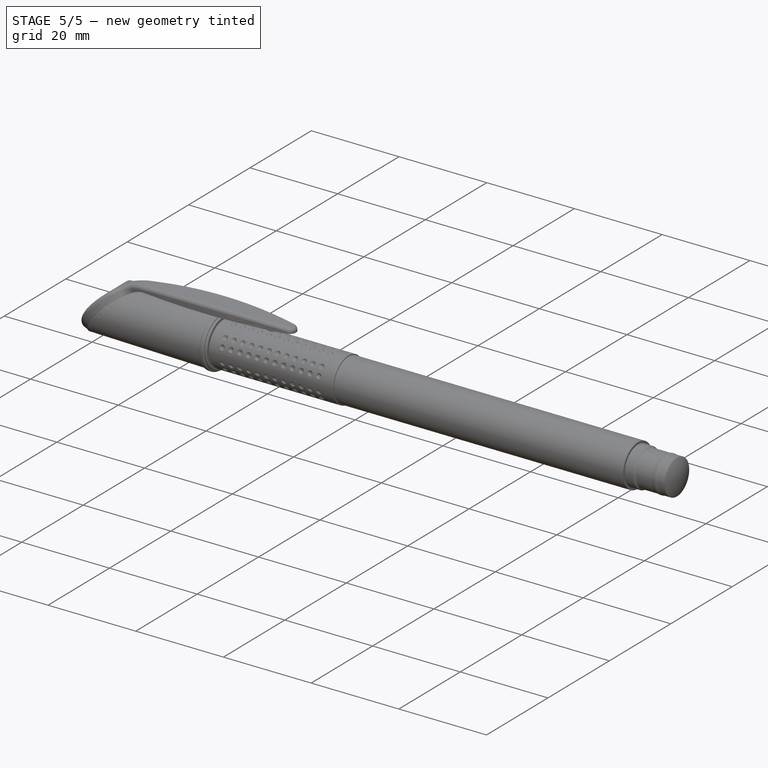
[diagram: stage 5 of 5 — iso view after this stage's code; geometry added in this stage tinted green]
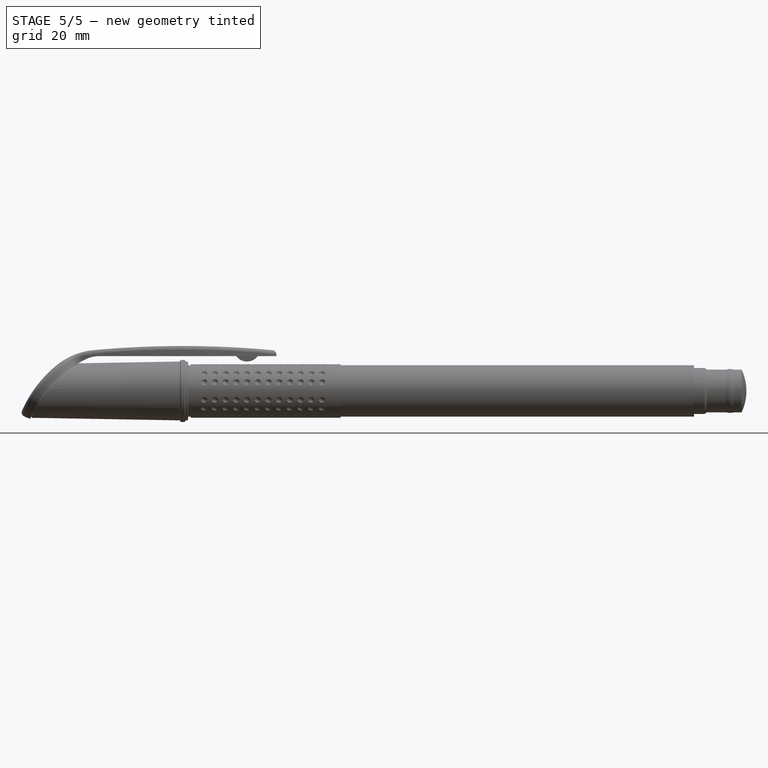
[diagram: stage 5 of 5 — front view after this stage's code; geometry added in this stage tinted green]
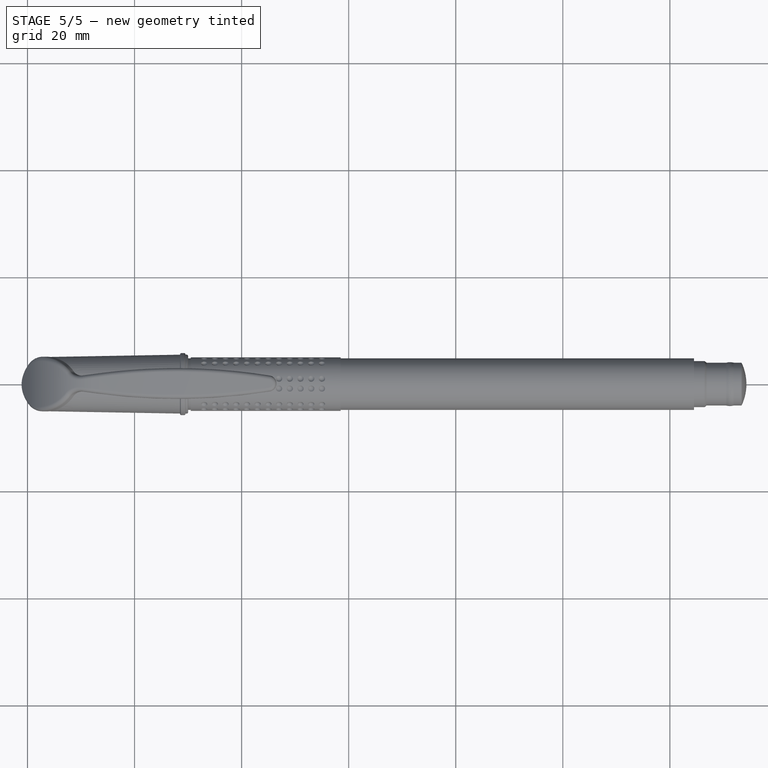
[diagram: stage 5 of 5 — top view after this stage's code; geometry added in this stage tinted green]
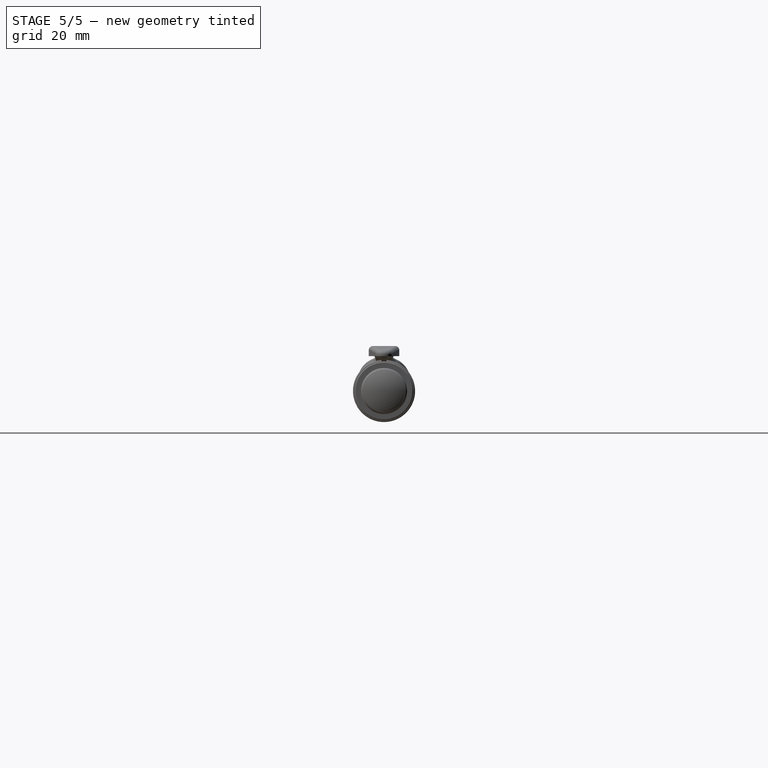
[diagram: stage 5 of 5 — right view after this stage's code; geometry added in this stage tinted green]
FEATURE [Part::Sphere] Sphere  label="Sphere圆珠"
  Angle1 = -90
  Angle2 = 90
  Angle3 = 360
  AttacherType = Attacher::AttachEngine3D
  Placement = pos=(-14,0,0) rot=(0,0,1;0rad)
  Radius = 0.45
FEATURE [Sketcher::SketchObject] Sketch  label="Sketch笔尖"
  MapMode = 5
  Placement = pos=(0,0,0) rot=(1,0,0;1.5708rad)
  Support = -> [XZ_Plane]
  sketch-geometry (7):
    g0: LineSegment StartX=0 StartY=0.9 StartZ=0 EndX=0 EndY=0.3 EndZ=0
    g1: LineSegment StartX=0 StartY=0.3 StartZ=0 EndX=-13.6513 EndY=0.3 EndZ=0
    g2: LineSegment [constr] StartX=-13.6513 StartY=0.3 StartZ=0 EndX=-14.1626 EndY=0.430288 EndZ=0
    g3: LineSegment StartX=-14.1626 StartY=0.430288 StartZ=0 EndX=-13.997 EndY=0.569244 EndZ=0
    g4: LineSegment StartX=-13.997 StartY=0.569244 StartZ=0 EndX=-12.7626 EndY=0.9 EndZ=0
    g5: LineSegment StartX=-12.7626 StartY=0.9 StartZ=0 EndX=0 EndY=0.9 EndZ=0
    g6: ArcOfCircle CenterX=-14 CenterY=0 CenterZ=0 NormalX=0 NormalY=0 NormalZ=1 AngleXU=0 Radius=0.46 StartAngle=0.710449 EndAngle=1.93218
  constraints (21):
    c: PointOnObject(g0,g-2)
    c: Vertical(g0)
    c: Coincident(g0,g1)
    c: Horizontal(g1)
    c: Coincident(g1,g2)
    c: Coincident(g2,g3)
    c: Coincident(g3,g4)
    c: Coincident(g4,g5)
    c: Horizontal(g5)
    c: Coincident(g0,g5)
    c: DistanceY(g0,g0) = 0.6
    c: DistanceY(g-1,g0) = 0.9
    c: Coincident(g6,g3)
    c: Coincident(g6,g1)
    c: PointOnObject(g6,g-1)
    c: Radius(g6) = 0.46
    c: Angle(g3,g4) = 2.70526
    c: Angle(g4,g5) = 2.87979
    c: Angle(g6) = 1.22173
    c: DistanceX(g3,g4) = 1.4
    c: DistanceX(g6,g-1) = 14
FEATURE [PartDesign::Revolution] Revolution  label="Revolution笔尖"
  Angle = 360
  Axis = (1,0,0)
  Base = (0,0,0)
  Placement = pos=(0,0,0) rot=(1,0,0;1.5708rad)
  Profile = -> Sketch
  ReferenceAxis = -> Sketch [H_Axis]
  Refine = true
FEATURE [PartDesign::Body] Body  label="Body笔尖"
  Group = -> [Sketch,Revolution]
  Origin = -> Origin
  Tip = -> Revolution
FEATURE [Sketcher::SketchObject] Sketch001  label="Sketch001笔芯管"
  MapMode = 5
  Placement = pos=(0,0,0) rot=(0.57735,0.57735,0.57735;2.0944rad)
  Support = -> [YZ_Plane001]
  sketch-geometry (2):
    g0: Circle CenterX=0 CenterY=0 CenterZ=0 NormalX=0 NormalY=0 NormalZ=1 AngleXU=0 Radius=1.4
    g1: Circle CenterX=0 CenterY=0 CenterZ=0 NormalX=0 NormalY=0 NormalZ=1 AngleXU=0 Radius=1.9
  constraints (4):
    c: Coincident(g0,g-1)
    c: Coincident(g1,g0)
    c: Radius(g0) = 1.4
    c: Radius(g1) = 1.9
FEATURE [PartDesign::Pad] Pad  label="Pad笔芯管"
  Length = 110
  Length2 = 100
  Placement = pos=(0,0,0) rot=(0.57735,0.57735,0.57735;2.0944rad)
  Profile = -> Sketch001
  Refine = true
  Type = 0
FEATURE [PartDesign::Body] Body001  label="Body001笔芯管"
  Group = -> [Sketch001,Pad]
  Origin = -> Origin001
  Tip = -> Pad
FEATURE [Sketcher::SketchObject] Sketch002  label="Sketch连接套(笔芯-笔尖)"
  MapMode = 5
  Placement = pos=(0,0,0) rot=(1,0,0;1.5708rad)
  Support = -> [XZ_Plane002]
  sketch-geometry (11):
    g0: LineSegment StartX=0 StartY=1.9 StartZ=0 EndX=0 EndY=0.9 EndZ=0
    g1: LineSegment StartX=0 StartY=0.9 StartZ=0 EndX=-7 EndY=0.9 EndZ=0
    g2: LineSegment StartX=-7 StartY=0.9 StartZ=0 EndX=-7 EndY=1.1 EndZ=0
    g3: LineSegment StartX=-7 StartY=1.1 StartZ=0 EndX=-6.9 EndY=1.2 EndZ=0
    g4: LineSegment StartX=-6.9 StartY=1.2 StartZ=0 EndX=-1.8 EndY=1.2 EndZ=0
    g5: LineSegment StartX=-1.8 StartY=1.2 StartZ=0 EndX=-0.5 EndY=2.5 EndZ=0
    g6: LineSegment StartX=-0.5 StartY=2.5 StartZ=0 EndX=0 EndY=2.5 EndZ=0
    g7: LineSegment StartX=0 StartY=2.5 StartZ=0 EndX=0 EndY=2.35 EndZ=0
    g8: LineSegment StartX=0 StartY=2.35 StartZ=0 EndX=4.2 EndY=2.35 EndZ=0
    g9: LineSegment StartX=4.2 StartY=2.35 StartZ=0 EndX=4.2 EndY=1.9 EndZ=0
    g10: LineSegment StartX=4.2 StartY=1.9 StartZ=0 EndX=0 EndY=1.9 EndZ=0
  constraints (33):
    c: PointOnObject(g0,g-2)
    c: Vertical(g0)
    c: Coincident(g0,g1)
    c: Horizontal(g1)
    c: Coincident(g1,g2)
    c: Vertical(g2)
    c: Coincident(g2,g3)
    c: Coincident(g3,g4)
    c: Horizontal(g4)
    c: Coincident(g4,g5)
    c: Coincident(g5,g6)
    c: PointOnObject(g6,g-2)
    c: Horizontal(g6)
    c: Coincident(g6,g7)
    c: Vertical(g7)
    c: Coincident(g7,g8)
    c: Horizontal(g8)
    c: Coincident(g8,g9)
    c: Vertical(g9)
    c: Coincident(g9,g10)
    c: Coincident(g10,g0)
    c: Horizontal(g10)
    c: Angle(g5,g6) = 2.35619
    c: Angle(g3,g4) = 2.35619
    c: DistanceY(g2,g2) = 0.2
    c: DistanceY(g1,g3) = 0.3
    c: DistanceY(g4,g5) = 1.3
    c: DistanceX(g6,g6) = 0.5
    c: DistanceX(g4,g8) = 6
    c: DistanceY(g9,g9) = 0.45
    c: DistanceY(g-1,g0) = 1.9
    c: DistanceY(g-1,g0) = 0.9
    c: DistanceX(g1,g1) = 7
FEATURE [PartDesign::Revolution] Revolution001  label="Revolution连接套(笔芯-笔尖)"
  Angle = 360
  Axis = (1,0,0)
  Base = (0,0,0)
  Placement = pos=(0,0,0) rot=(1,0,0;1.5708rad)
  Profile = -> Sketch002
  ReferenceAxis = -> Sketch002 [H_Axis]
  Refine = true
FEATURE [PartDesign::Body] Body003  label="Body加强筋"
  Group = -> [Sketch003,Pad001]
  Origin = -> Origin003
  Tip = -> Pad001
FEATURE [Part::FeaturePython] Array  label="Array加强筋"  # Draft array (typed FeaturePython)
  Angle = 360
  ArrayType = 1
  Axis = (1,0,0)
  Base = -> Pad001
  Center = (0,0,0)
  Fuse = false
  IntervalAxis = (0,0,0)
  IntervalX = (1,0,0)
  IntervalY = (0,1,0)
  IntervalZ = (0,0,1)
  NumberPolar = 4
  NumberX = 2
  NumberY = 2
  NumberZ = 1
FEATURE [Part::MultiFuse] Fusion  label="Fusion连接套(笔芯-笔尖)"
  Refine = true
  Shapes = -> [Revolution001,Array]
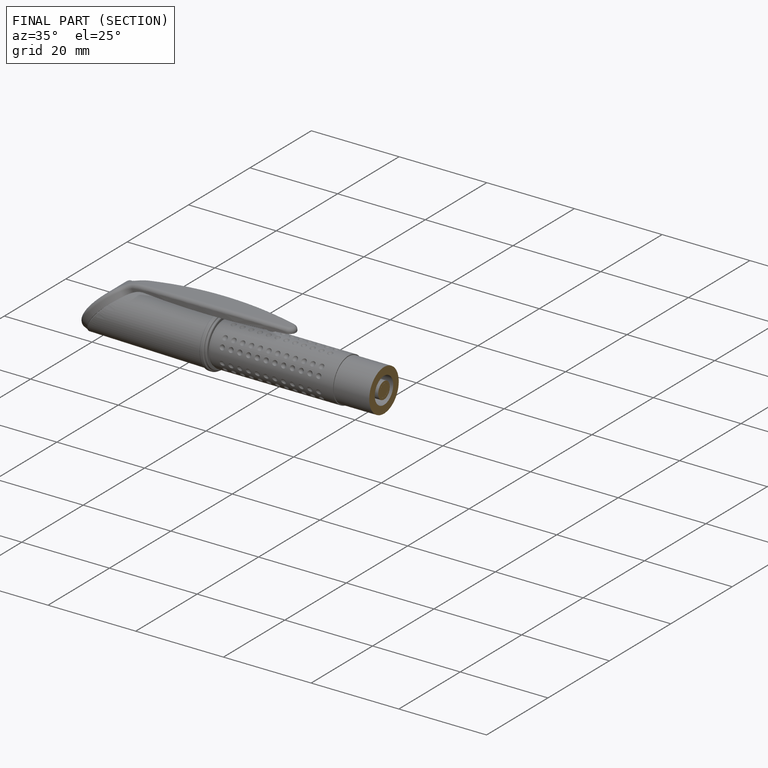
[diagram: finished part — half-section view (interior)]
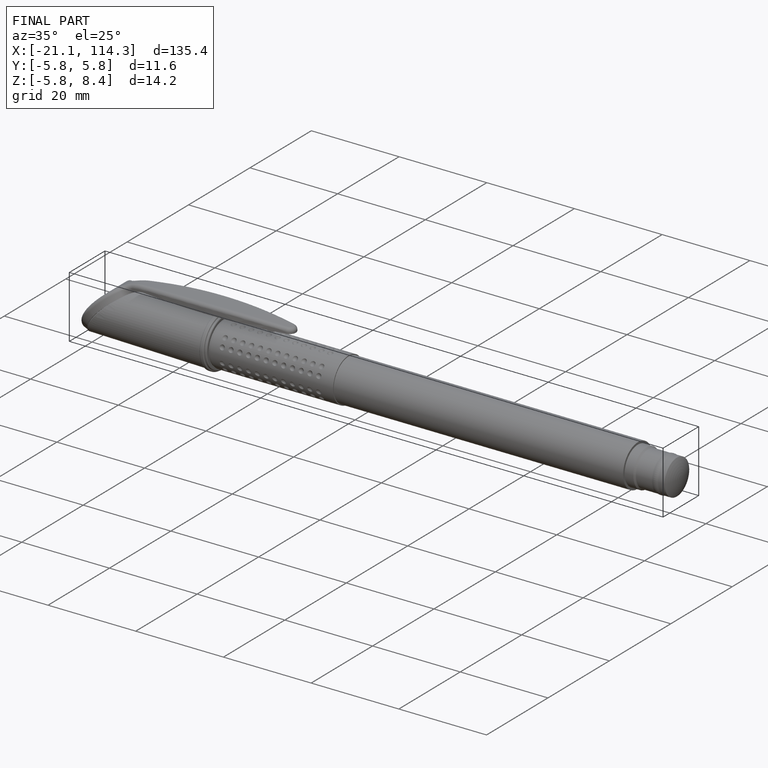
[diagram: finished part — iso view with bounding-box wireframe]
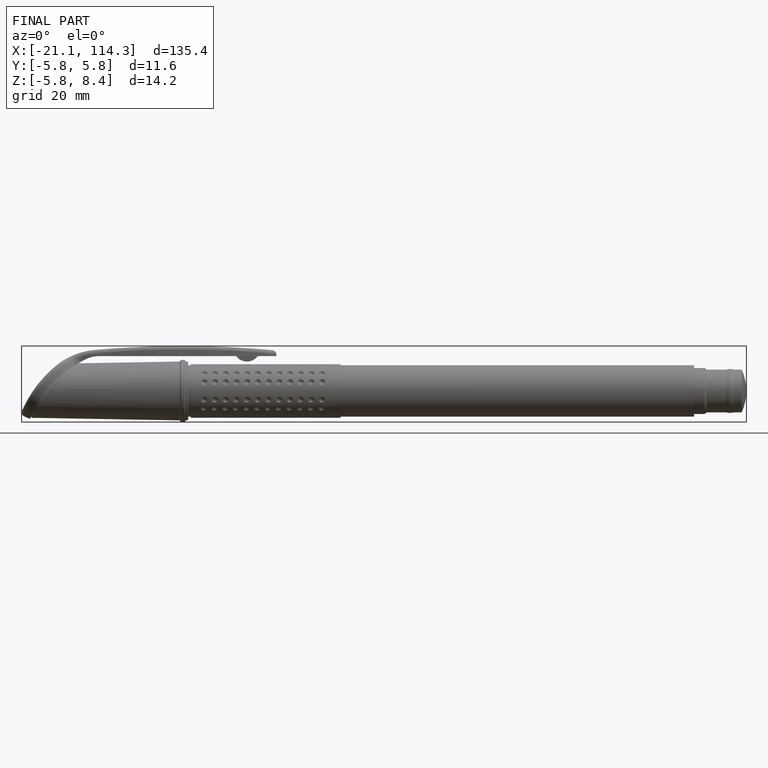
[diagram: finished part — front view with bounding-box wireframe]
